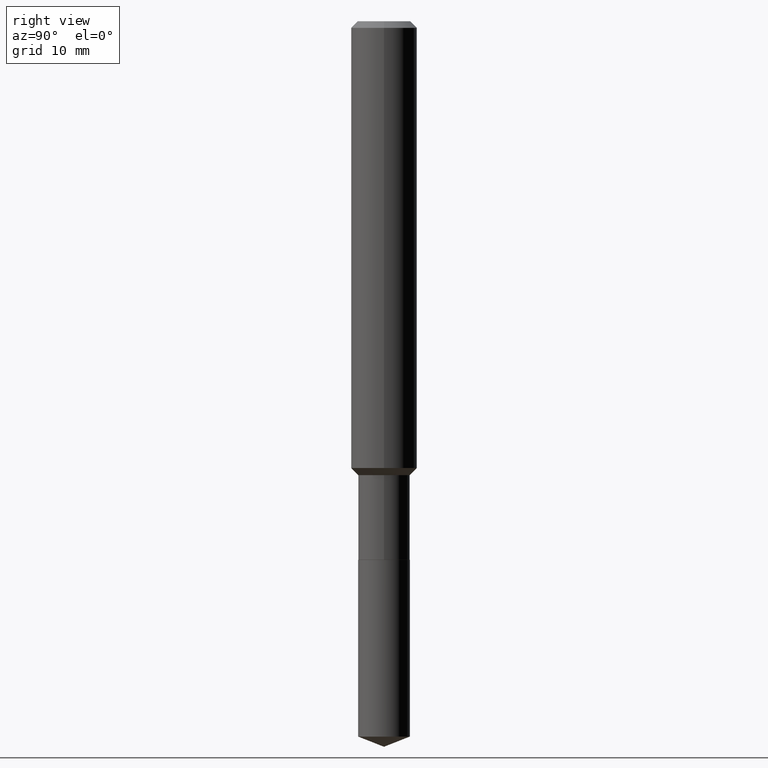
[diagram: clean part render]
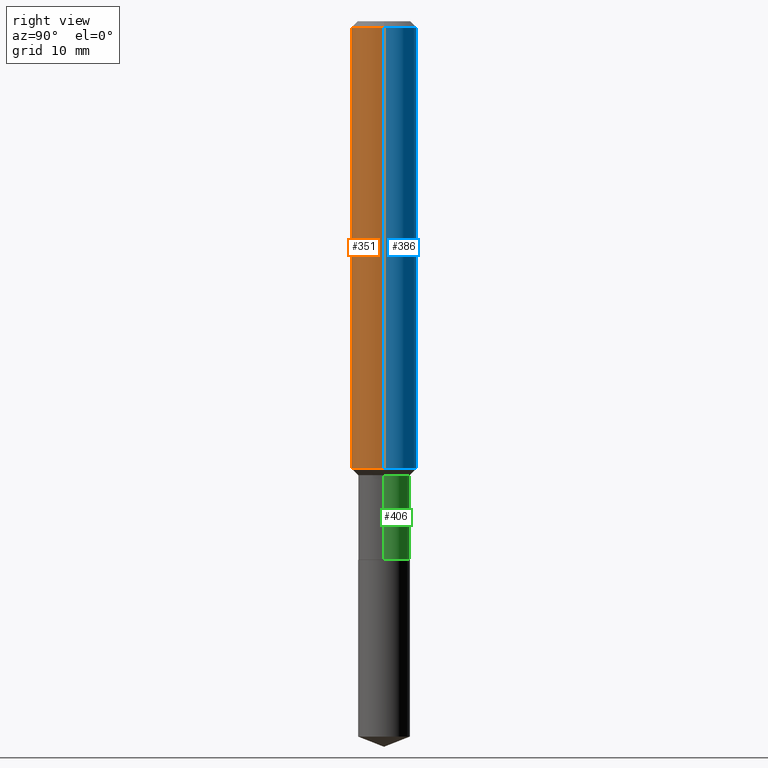
[diagram: same view with three faces highlighted in distinct colors, each labeled with its STEP entity id]
A machine part, right view with three faces highlighted in distinct colors.
Their STEP definitions:

[orange] entity #351 — the highlighted cylindrical surface (edge-blend (fillet) strip) has radius 2.9997 mm, axis along (-0, 0, 1).
#20 = VERTEX_POINT ( 'NONE', #462 ) ;
#38 = VERTEX_POINT ( 'NONE', #59 ) ;
#56 = EDGE_LOOP ( 'NONE', ( #297, #294, #441, #437 ) ) ;
#59 = CARTESIAN_POINT ( 'NONE',  ( 0.1181000000000001909, -6.411407182517665653E-15, -1.600099999999999634 ) ) ;
#70 = DIRECTION ( 'NONE',  ( -2.445468806185136597E-29, 3.491481338843145583E-15, 1.000000000000000000 ) ) ;
#74 = CIRCLE ( 'NONE', #455, 0.1180999999999999966 ) ;
#83 = CIRCLE ( 'NONE', #115, 0.1181000000000001909 ) ;
#105 = LINE ( 'NONE', #370, #222 ) ;
#115 = AXIS2_PLACEMENT_3D ( 'NONE', #181, #70, #433 ) ;
#128 = VERTEX_POINT ( 'NONE', #132 ) ;
#132 = CARTESIAN_POINT ( 'NONE',  ( -0.1181000000000001909, -4.747568319350237616E-15, -1.600099999999999634 ) ) ;
#152 = CYLINDRICAL_SURFACE ( 'NONE', #258, 0.1181000000000001077 ) ;
#155 = DIRECTION ( 'NONE',  ( -2.445468806185136877E-29, 3.491481338843145188E-15, 1.000000000000000000 ) ) ;
#181 = CARTESIAN_POINT ( 'NONE',  ( 3.912994636776836330E-29, -5.586719290282915813E-15, -1.600099999999999634 ) ) ;
#194 = VERTEX_POINT ( 'NONE', #220 ) ;
#200 = FACE_OUTER_BOUND ( 'NONE', #56, .T. ) ;
#217 = VECTOR ( 'NONE', #304, 39.37007874015748143 ) ;
#218 = EDGE_CURVE ( 'NONE', #20, #194, #74, .T. ) ;
#220 = CARTESIAN_POINT ( 'NONE',  ( 0.1180999999999999966, -9.071566814582237199E-16, -0.02362000000000014088 ) ) ;
#222 = VECTOR ( 'NONE', #155, 39.37007874015748143 ) ;
#233 = DIRECTION ( 'NONE',  ( -2.445468806185136597E-29, 3.491481338843145583E-15, 1.000000000000000000 ) ) ;
#258 = AXIS2_PLACEMENT_3D ( 'NONE', #445, #460, #311 ) ;
#266 = CARTESIAN_POINT ( 'NONE',  ( 5.776197320209327532E-31, -8.246878922347559293E-17, -0.02362000000000014088 ) ) ;
#270 = CARTESIAN_POINT ( 'NONE',  ( -0.1181000000000001077, 8.391509709326790846E-16, -5.809262341591049389E-30 ) ) ;
#276 = EDGE_CURVE ( 'NONE', #128, #38, #83, .T. ) ;
#294 = ORIENTED_EDGE ( 'NONE', *, *, #276, .T. ) ;
#297 = ORIENTED_EDGE ( 'NONE', *, *, #316, .F. ) ;
#304 = DIRECTION ( 'NONE',  ( -2.445468806185136877E-29, 3.491481338843145188E-15, 1.000000000000000000 ) ) ;
#311 = DIRECTION ( 'NONE',  ( 1.000000000000000000, -6.982962677686266711E-15, 4.876176775795935793E-29 ) ) ;
#312 = EDGE_CURVE ( 'NONE', #38, #194, #105, .T. ) ;
#316 = EDGE_CURVE ( 'NONE', #128, #20, #449, .T. ) ;
#351 = ADVANCED_FACE ( 'NONE', ( #200 ), #152, .T. ) ;
#370 = CARTESIAN_POINT ( 'NONE',  ( 0.1181000000000001077, -8.246878922347488542E-16, 5.758764772215005345E-30 ) ) ;
#402 = DIRECTION ( 'NONE',  ( 1.000000000000000000, -6.982962677686266711E-15, 0.000000000000000000 ) ) ;
#433 = DIRECTION ( 'NONE',  ( 1.000000000000000000, -6.982962677686269077E-15, 0.000000000000000000 ) ) ;
#437 = ORIENTED_EDGE ( 'NONE', *, *, #218, .F. ) ;
#441 = ORIENTED_EDGE ( 'NONE', *, *, #312, .T. ) ;
#445 = CARTESIAN_POINT ( 'NONE',  ( 0.000000000000000000, 0.000000000000000000, 0.000000000000000000 ) ) ;
#449 = LINE ( 'NONE', #270, #217 ) ;
#455 = AXIS2_PLACEMENT_3D ( 'NONE', #266, #233, #402 ) ;
#460 = DIRECTION ( 'NONE',  ( -2.445468806185136597E-29, 3.491481338843145583E-15, 1.000000000000000000 ) ) ;
#462 = CARTESIAN_POINT ( 'NONE',  ( -0.1180999999999999966, -1.995443068820515466E-15, -0.02362000000000014088 ) ) ;

[blue] entity #386 — the highlighted cylindrical surface (edge-blend (fillet) strip) has radius 2.9997 mm, axis along (-0, 0, 1).
#20 = VERTEX_POINT ( 'NONE', #462 ) ;
#32 = EDGE_CURVE ( 'NONE', #38, #128, #150, .T. ) ;
#38 = VERTEX_POINT ( 'NONE', #59 ) ;
#48 = FACE_OUTER_BOUND ( 'NONE', #149, .T. ) ;
#57 = DIRECTION ( 'NONE',  ( -2.445468806185136597E-29, 3.491481338843145583E-15, 1.000000000000000000 ) ) ;
#59 = CARTESIAN_POINT ( 'NONE',  ( 0.1181000000000001909, -6.411407182517665653E-15, -1.600099999999999634 ) ) ;
#73 = AXIS2_PLACEMENT_3D ( 'NONE', #315, #57, #97 ) ;
#85 = ORIENTED_EDGE ( 'NONE', *, *, #316, .T. ) ;
#97 = DIRECTION ( 'NONE',  ( 1.000000000000000000, -6.982962677686266711E-15, 0.000000000000000000 ) ) ;
#105 = LINE ( 'NONE', #370, #222 ) ;
#121 = ORIENTED_EDGE ( 'NONE', *, *, #32, .T. ) ;
#128 = VERTEX_POINT ( 'NONE', #132 ) ;
#132 = CARTESIAN_POINT ( 'NONE',  ( -0.1181000000000001909, -4.747568319350237616E-15, -1.600099999999999634 ) ) ;
#148 = EDGE_CURVE ( 'NONE', #194, #20, #284, .T. ) ;
#149 = EDGE_LOOP ( 'NONE', ( #121, #85, #331, #328 ) ) ;
#150 = CIRCLE ( 'NONE', #425, 0.1181000000000001909 ) ;
#155 = DIRECTION ( 'NONE',  ( -2.445468806185136877E-29, 3.491481338843145188E-15, 1.000000000000000000 ) ) ;
#194 = VERTEX_POINT ( 'NONE', #220 ) ;
#195 = DIRECTION ( 'NONE',  ( 1.000000000000000000, -6.982962677686266711E-15, 4.876176775795935793E-29 ) ) ;
#217 = VECTOR ( 'NONE', #304, 39.37007874015748143 ) ;
#220 = CARTESIAN_POINT ( 'NONE',  ( 0.1180999999999999966, -9.071566814582237199E-16, -0.02362000000000014088 ) ) ;
#222 = VECTOR ( 'NONE', #155, 39.37007874015748143 ) ;
#234 = DIRECTION ( 'NONE',  ( -2.445468806185136597E-29, 3.491481338843145583E-15, 1.000000000000000000 ) ) ;
#238 = CYLINDRICAL_SURFACE ( 'NONE', #470, 0.1181000000000001077 ) ;
#244 = CARTESIAN_POINT ( 'NONE',  ( 3.912994636776836330E-29, -5.586719290282915813E-15, -1.600099999999999634 ) ) ;
#270 = CARTESIAN_POINT ( 'NONE',  ( -0.1181000000000001077, 8.391509709326790846E-16, -5.809262341591049389E-30 ) ) ;
#278 = DIRECTION ( 'NONE',  ( 1.000000000000000000, -6.982962677686269077E-15, 0.000000000000000000 ) ) ;
#284 = CIRCLE ( 'NONE', #73, 0.1180999999999999966 ) ;
#304 = DIRECTION ( 'NONE',  ( -2.445468806185136877E-29, 3.491481338843145188E-15, 1.000000000000000000 ) ) ;
#312 = EDGE_CURVE ( 'NONE', #38, #194, #105, .T. ) ;
#315 = CARTESIAN_POINT ( 'NONE',  ( 5.776197320209327532E-31, -8.246878922347559293E-17, -0.02362000000000014088 ) ) ;
#316 = EDGE_CURVE ( 'NONE', #128, #20, #449, .T. ) ;
#328 = ORIENTED_EDGE ( 'NONE', *, *, #312, .F. ) ;
#331 = ORIENTED_EDGE ( 'NONE', *, *, #148, .F. ) ;
#332 = CARTESIAN_POINT ( 'NONE',  ( 0.000000000000000000, 0.000000000000000000, 0.000000000000000000 ) ) ;
#362 = DIRECTION ( 'NONE',  ( -2.445468806185136597E-29, 3.491481338843145583E-15, 1.000000000000000000 ) ) ;
#370 = CARTESIAN_POINT ( 'NONE',  ( 0.1181000000000001077, -8.246878922347488542E-16, 5.758764772215005345E-30 ) ) ;
#386 = ADVANCED_FACE ( 'NONE', ( #48 ), #238, .T. ) ;
#425 = AXIS2_PLACEMENT_3D ( 'NONE', #244, #234, #278 ) ;
#449 = LINE ( 'NONE', #270, #217 ) ;
#462 = CARTESIAN_POINT ( 'NONE',  ( -0.1180999999999999966, -1.995443068820515466E-15, -0.02362000000000014088 ) ) ;
#470 = AXIS2_PLACEMENT_3D ( 'NONE', #332, #362, #195 ) ;

[green] entity #406 — the highlighted cylindrical surface (edge-blend (fillet) strip) has radius 2.3495 mm, axis along (-0, 0, 1).
#1 = VERTEX_POINT ( 'NONE', #129 ) ;
#10 = FACE_OUTER_BOUND ( 'NONE', #376, .T. ) ;
#19 = VECTOR ( 'NONE', #30, 39.37007874015748143 ) ;
#30 = DIRECTION ( 'NONE',  ( -2.445468806185136877E-29, 3.491481338843145188E-15, 1.000000000000000000 ) ) ;
#31 = CARTESIAN_POINT ( 'NONE',  ( -0.09249999999999997113, -5.547634030747003003E-15, -1.625699999999999923 ) ) ;
#42 = ORIENTED_EDGE ( 'NONE', *, *, #173, .F. ) ;
#54 = AXIS2_PLACEMENT_3D ( 'NONE', #109, #345, #381 ) ;
#86 = LINE ( 'NONE', #365, #131 ) ;
#89 = DIRECTION ( 'NONE',  ( -2.445468806185136877E-29, 3.491481338843145188E-15, 1.000000000000000000 ) ) ;
#94 = CARTESIAN_POINT ( 'NONE',  ( 0.09249999999999998501, -6.459240476859795918E-16, 4.510463517611239347E-30 ) ) ;
#106 = EDGE_CURVE ( 'NONE', #1, #458, #393, .T. ) ;
#109 = CARTESIAN_POINT ( 'NONE',  ( 4.716331139608654438E-29, -6.733670910092890989E-15, -1.928600000000000092 ) ) ;
#126 = DIRECTION ( 'NONE',  ( -2.445468806185136597E-29, 3.491481338843145583E-15, 1.000000000000000000 ) ) ;
#129 = CARTESIAN_POINT ( 'NONE',  ( 0.09249999999999999889, -7.379594957778870187E-15, -1.928600000000000092 ) ) ;
#131 = VECTOR ( 'NONE', #89, 39.37007874015748143 ) ;
#154 = CARTESIAN_POINT ( 'NONE',  ( 0.000000000000000000, 0.000000000000000000, 0.000000000000000000 ) ) ;
#162 = ORIENTED_EDGE ( 'NONE', *, *, #366, .T. ) ;
#173 = EDGE_CURVE ( 'NONE', #1, #397, #207, .T. ) ;
#176 = DIRECTION ( 'NONE',  ( 1.000000000000000000, -6.982962677686266711E-15, 0.000000000000000000 ) ) ;
#179 = AXIS2_PLACEMENT_3D ( 'NONE', #154, #191, #307 ) ;
#191 = DIRECTION ( 'NONE',  ( -2.445468806185136597E-29, 3.491481338843145583E-15, 1.000000000000000000 ) ) ;
#193 = VERTEX_POINT ( 'NONE', #31 ) ;
#207 = LINE ( 'NONE', #94, #19 ) ;
#211 = CARTESIAN_POINT ( 'NONE',  ( -0.09249999999999999889, -5.547634030747003003E-15, -1.928600000000000092 ) ) ;
#227 = EDGE_CURVE ( 'NONE', #397, #193, #230, .T. ) ;
#228 = CARTESIAN_POINT ( 'NONE',  ( 0.09249999999999997113, -6.322025260243280726E-15, -1.625699999999999923 ) ) ;
#230 = CIRCLE ( 'NONE', #246, 0.09249999999999997113 ) ;
#246 = AXIS2_PLACEMENT_3D ( 'NONE', #368, #126, #176 ) ;
#274 = ORIENTED_EDGE ( 'NONE', *, *, #227, .F. ) ;
#301 = ORIENTED_EDGE ( 'NONE', *, *, #106, .T. ) ;
#307 = DIRECTION ( 'NONE',  ( 1.000000000000000000, -6.982962677686266711E-15, 4.876176775795935232E-29 ) ) ;
#345 = DIRECTION ( 'NONE',  ( -2.445468806185136597E-29, 3.491481338843145583E-15, 1.000000000000000000 ) ) ;
#365 = CARTESIAN_POINT ( 'NONE',  ( -0.09249999999999998501, 6.572520305780925654E-16, -4.550014958485786769E-30 ) ) ;
#366 = EDGE_CURVE ( 'NONE', #458, #193, #86, .T. ) ;
#368 = CARTESIAN_POINT ( 'NONE',  ( 3.975598638215176219E-29, -5.676101212557301529E-15, -1.625699999999999923 ) ) ;
#372 = CYLINDRICAL_SURFACE ( 'NONE', #179, 0.09249999999999998501 ) ;
#376 = EDGE_LOOP ( 'NONE', ( #301, #162, #274, #42 ) ) ;
#381 = DIRECTION ( 'NONE',  ( 1.000000000000000000, -6.982962677686265133E-15, 0.000000000000000000 ) ) ;
#393 = CIRCLE ( 'NONE', #54, 0.09249999999999999889 ) ;
#397 = VERTEX_POINT ( 'NONE', #228 ) ;
#406 = ADVANCED_FACE ( 'NONE', ( #10 ), #372, .T. ) ;
#458 = VERTEX_POINT ( 'NONE', #211 ) ;